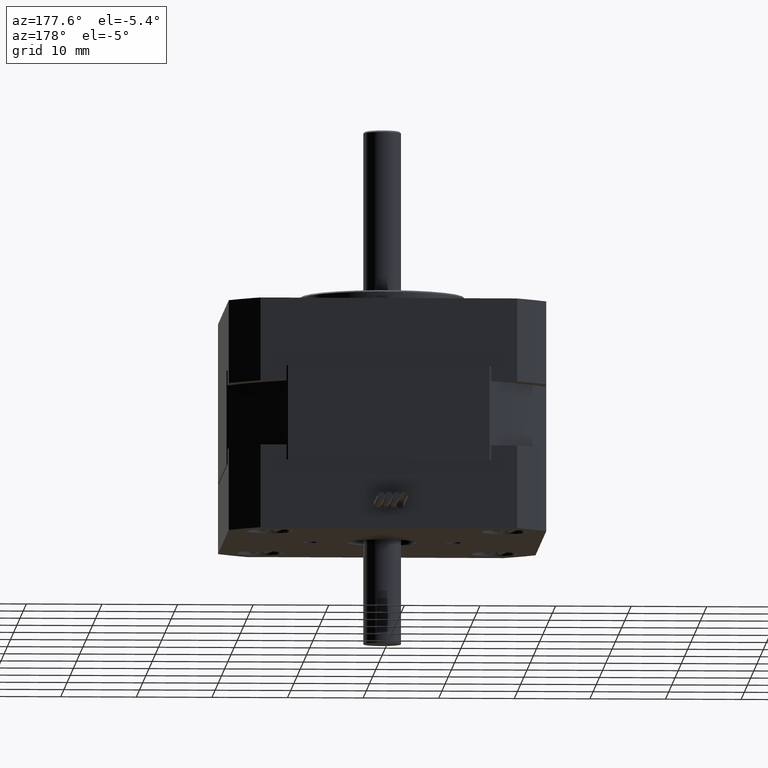
[diagram: clean part render]
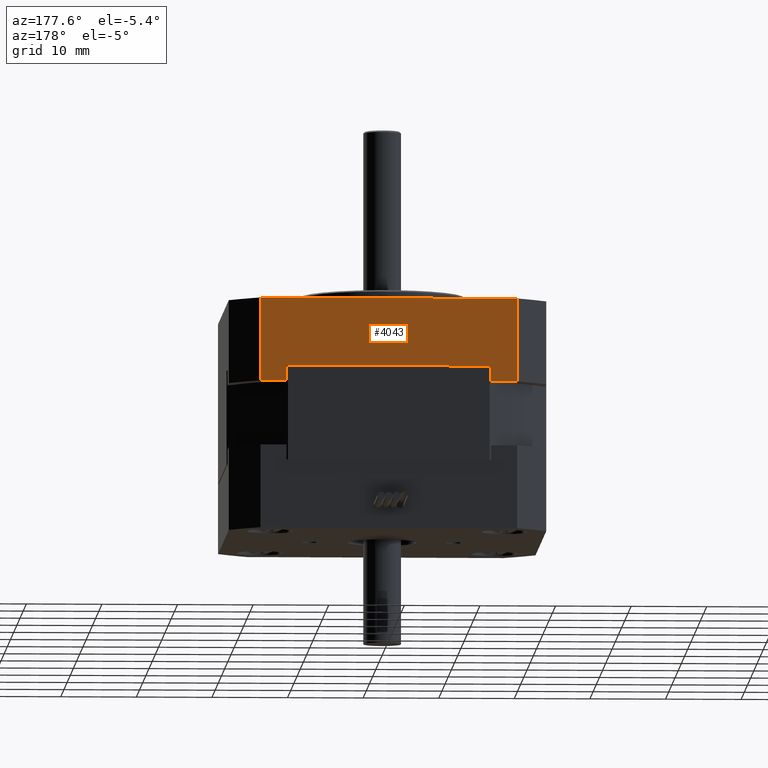
[diagram: same view with one face highlighted and labeled with its STEP entity id]
A machine part, auxiliary view. The second image highlights one B-rep face of the part: STEP entity #4043.
In plain terms, the highlighted planar face has unit normal (-0, 1, -0).
Its self-contained STEP definition (entity closure, byte-faithful):
#122=LINE('',#6163,#370);
#124=LINE('',#6169,#372);
#130=LINE('',#6177,#378);
#136=LINE('',#6192,#384);
#138=LINE('',#6199,#386);
#142=LINE('',#6212,#390);
#143=LINE('',#6214,#391);
#144=LINE('',#6215,#392);
#370=VECTOR('',#4875,2.);
#372=VECTOR('',#4879,2.);
#378=VECTOR('',#4887,26.);
#384=VECTOR('',#4899,3.97056274847712);
#386=VECTOR('',#4907,3.97056274847716);
#390=VECTOR('',#4921,11.);
#391=VECTOR('',#4922,33.9411254969543);
#392=VECTOR('',#4923,11.);
#617=PLANE('',#4336);
#899=FACE_OUTER_BOUND('',#1167,.T.);
#1167=EDGE_LOOP('',(#2760,#2761,#2762,#2763,#2764,#2765,#2766,#2767));
#1752=VERTEX_POINT('',#6157);
#1754=VERTEX_POINT('',#6161);
#1755=VERTEX_POINT('',#6165);
#1757=VERTEX_POINT('',#6168);
#1764=VERTEX_POINT('',#6191);
#1766=VERTEX_POINT('',#6197);
#1770=VERTEX_POINT('',#6211);
#1771=VERTEX_POINT('',#6213);
#2150=EDGE_CURVE('',#1752,#1754,#122,.T.);
#2152=EDGE_CURVE('',#1757,#1755,#124,.T.);
#2158=EDGE_CURVE('',#1755,#1752,#130,.T.);
#2165=EDGE_CURVE('',#1764,#1757,#136,.T.);
#2169=EDGE_CURVE('',#1754,#1766,#138,.T.);
#2175=EDGE_CURVE('',#1766,#1770,#142,.T.);
#2176=EDGE_CURVE('',#1770,#1771,#143,.T.);
#2177=EDGE_CURVE('',#1764,#1771,#144,.T.);
#2760=ORIENTED_EDGE('',*,*,#2152,.T.);
#2761=ORIENTED_EDGE('',*,*,#2158,.T.);
#2762=ORIENTED_EDGE('',*,*,#2150,.T.);
#2763=ORIENTED_EDGE('',*,*,#2169,.T.);
#2764=ORIENTED_EDGE('',*,*,#2175,.T.);
#2765=ORIENTED_EDGE('',*,*,#2176,.T.);
#2766=ORIENTED_EDGE('',*,*,#2177,.F.);
#2767=ORIENTED_EDGE('',*,*,#2165,.T.);
#4043=ADVANCED_FACE('',(#899),#617,.T.);
#4336=AXIS2_PLACEMENT_3D('',#6210,#4919,#4920);
#4875=DIRECTION('',(8.74300631892311E-16,2.59037577520082E-32,-1.));
#4879=DIRECTION('',(-8.74300631892311E-16,-2.59037577520082E-32,1.));
#4887=DIRECTION('',(-1.,-7.54604712049907E-17,-8.74300631892311E-16));
#4899=DIRECTION('',(-1.,-7.54604712049907E-17,-8.74300631892311E-16));
#4907=DIRECTION('',(-1.,-7.54604712049908E-17,-8.74300631892311E-16));
#4919=DIRECTION('center_axis',(-7.54604712049907E-17,1.,-4.00713799054067E-32));
#4920=DIRECTION('ref_axis',(-7.105427357601E-16,0.,1.));
#4921=DIRECTION('',(-8.7430063189231E-16,-2.59037577520082E-32,1.));
#4922=DIRECTION('',(1.,7.54604712049907E-17,8.74300631892311E-16));
#4923=DIRECTION('',(-8.7430063189231E-16,-2.59037577520082E-32,1.));
#6157=CARTESIAN_POINT('',(-13.,21.,-3.00000000000013));
#6161=CARTESIAN_POINT('',(-13.,21.,-5.00000000000013));
#6163=CARTESIAN_POINT('',(-13.,21.,-3.00000000000013));
#6165=CARTESIAN_POINT('',(13.,21.,-3.0000000000001));
#6168=CARTESIAN_POINT('',(13.,21.,-5.0000000000001));
#6169=CARTESIAN_POINT('',(13.,21.,-5.0000000000001));
#6177=CARTESIAN_POINT('',(13.,21.,-3.0000000000001));
#6191=CARTESIAN_POINT('',(16.9705627484771,21.,-5.0000000000001));
#6192=CARTESIAN_POINT('',(16.9705627484771,21.,-5.0000000000001));
#6197=CARTESIAN_POINT('',(-16.9705627484771,21.,-5.00000000000013));
#6199=CARTESIAN_POINT('',(-13.,21.,-5.00000000000013));
#6210=CARTESIAN_POINT('Origin',(-16.9705627484771,21.,-5.00000000000013));
#6211=CARTESIAN_POINT('',(-16.9705627484772,21.,5.99999999999987));
#6212=CARTESIAN_POINT('',(-16.9705627484771,21.,-5.00000000000013));
#6213=CARTESIAN_POINT('',(16.9705627484771,21.,5.9999999999999));
#6214=CARTESIAN_POINT('',(-16.9705627484772,21.,5.99999999999987));
#6215=CARTESIAN_POINT('',(16.9705627484771,21.,-5.0000000000001));